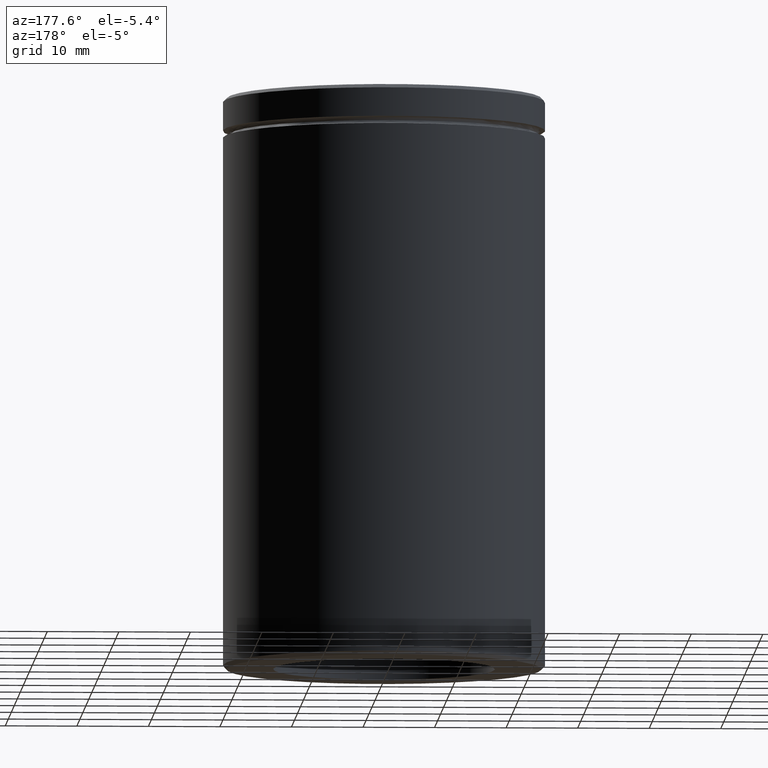
[diagram: clean part render]
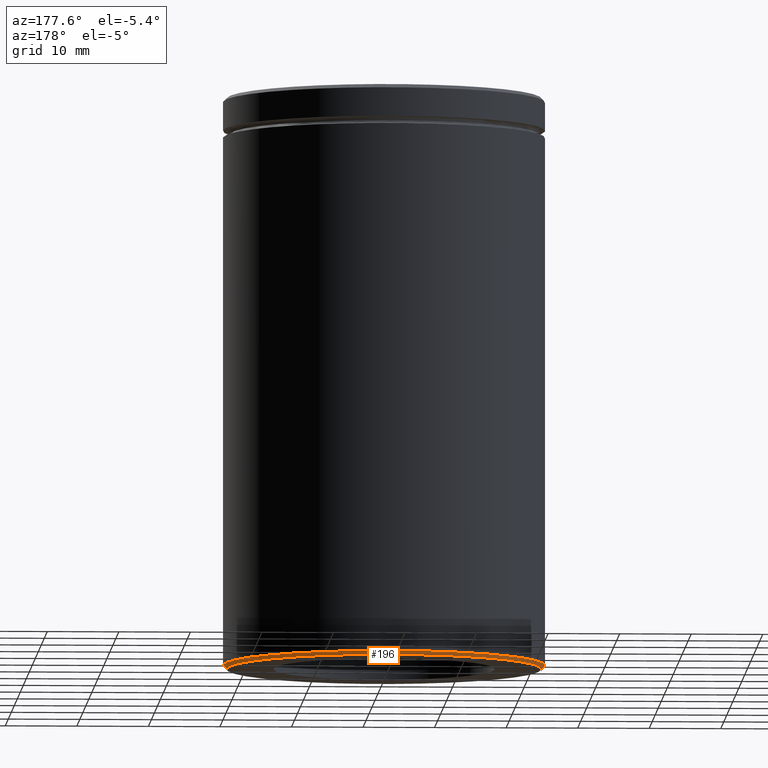
[diagram: same view with one face highlighted and labeled with its STEP entity id]
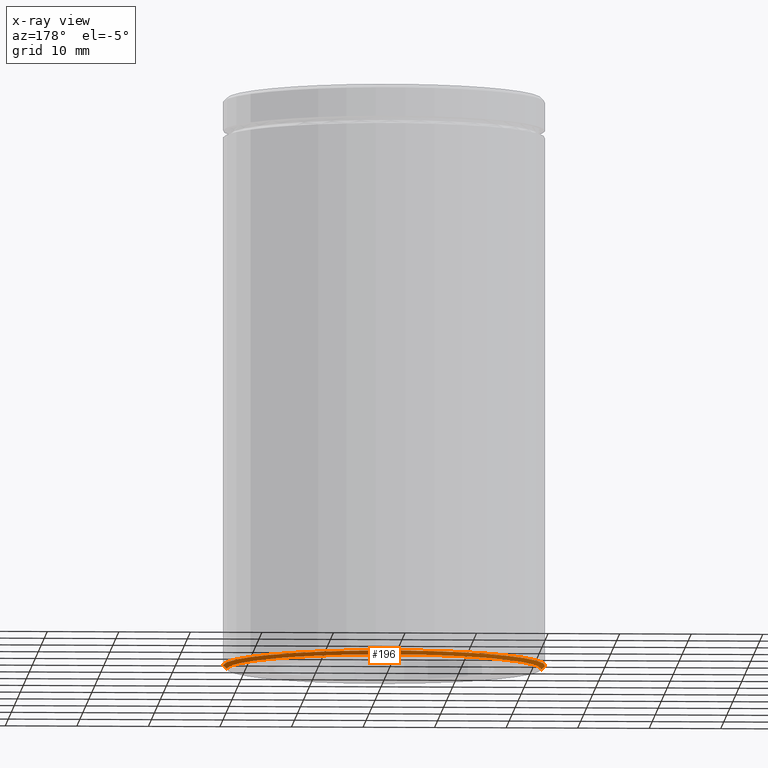
[diagram: x-ray of the same camera — body ghosted, the highlighted face saturated]
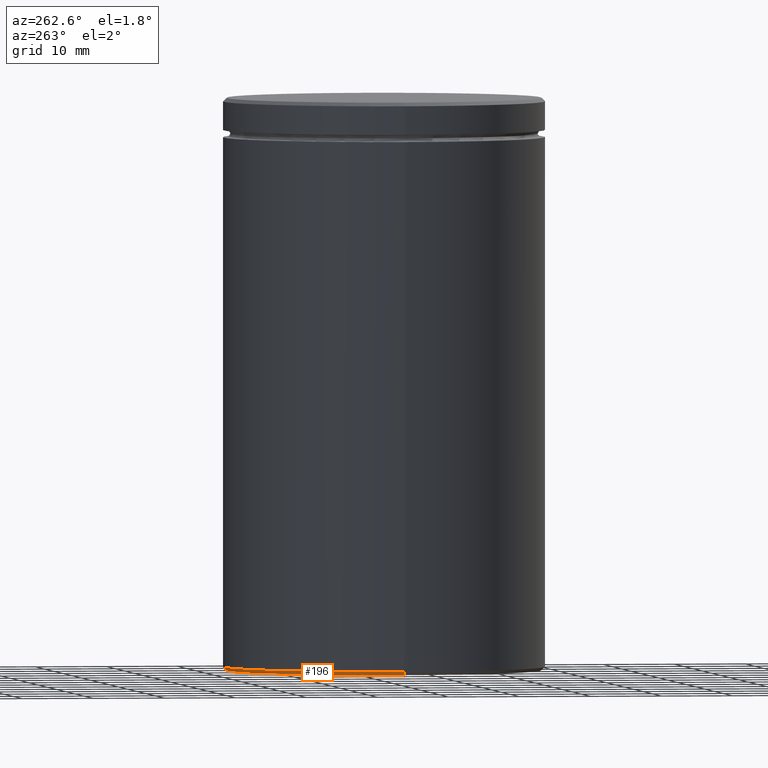
[diagram: same view with one face highlighted and labeled with its STEP entity id]
A machine part, auxiliary view. The second image highlights one B-rep face of the part: STEP entity #196.
The next image is the same camera in x-ray: the body ghosted, the highlighted face saturated — about 0% of this face is hidden behind the body in this view.
A second angle (auxiliary view) of the same face is appended — the face is thin or edge-on in the first view.
In plain terms, the highlighted conical surface has half-angle 45 deg.
Its self-contained STEP definition (entity closure, byte-faithful):
#3 = EDGE_CURVE ( 'NONE', #138, #230, #540, .T. ) ;
#6 = CARTESIAN_POINT ( 'NONE',  ( -22.50000000000000000, 2.755455298081544778E-15, -79.49999999999998579 ) ) ;
#40 = DIRECTION ( 'NONE',  ( -1.000000000000000000, 0.000000000000000000, 0.000000000000000000 ) ) ;
#42 = CARTESIAN_POINT ( 'NONE',  ( 0.000000000000000000, 0.000000000000000000, -79.49999999999998579 ) ) ;
#46 = DIRECTION ( 'NONE',  ( -0.000000000000000000, -0.000000000000000000, 1.000000000000000000 ) ) ;
#52 = EDGE_LOOP ( 'NONE', ( #550, #263, #319, #476 ) ) ;
#57 = CONICAL_SURFACE ( 'NONE', #271, 22.50000000000000000, 0.7853981633974346233 ) ;
#72 = CARTESIAN_POINT ( 'NONE',  ( -22.00000000000000000, 2.724839128102860991E-15, -80.00000000000000000 ) ) ;
#74 = VECTOR ( 'NONE', #389, 1000.000000000000000 ) ;
#99 = DIRECTION ( 'NONE',  ( -1.000000000000000000, 0.000000000000000000, 0.000000000000000000 ) ) ;
#138 = VERTEX_POINT ( 'NONE', #72 ) ;
#149 = DIRECTION ( 'NONE',  ( 0.000000000000000000, 0.000000000000000000, -1.000000000000000000 ) ) ;
#166 = CARTESIAN_POINT ( 'NONE',  ( 22.50000000000000000, 0.000000000000000000, -79.49999999999998579 ) ) ;
#174 = LINE ( 'NONE', #357, #499 ) ;
#176 = AXIS2_PLACEMENT_3D ( 'NONE', #330, #149, #99 ) ;
#181 = DIRECTION ( 'NONE',  ( -0.000000000000000000, -0.000000000000000000, 1.000000000000000000 ) ) ;
#196 = ADVANCED_FACE ( 'NONE', ( #311 ), #57, .T. ) ;
#197 = VERTEX_POINT ( 'NONE', #6 ) ;
#221 = EDGE_CURVE ( 'NONE', #450, #197, #292, .T. ) ;
#228 = CARTESIAN_POINT ( 'NONE',  ( 0.000000000000000000, 0.000000000000000000, -79.49999999999998579 ) ) ;
#230 = VERTEX_POINT ( 'NONE', #405 ) ;
#240 = EDGE_CURVE ( 'NONE', #230, #450, #174, .T. ) ;
#263 = ORIENTED_EDGE ( 'NONE', *, *, #428, .T. ) ;
#268 = DIRECTION ( 'NONE',  ( 1.000000000000000000, 0.000000000000000000, 0.000000000000000000 ) ) ;
#271 = AXIS2_PLACEMENT_3D ( 'NONE', #42, #46, #268 ) ;
#292 = CIRCLE ( 'NONE', #541, 22.50000000000000000 ) ;
#311 = FACE_OUTER_BOUND ( 'NONE', #52, .T. ) ;
#319 = ORIENTED_EDGE ( 'NONE', *, *, #221, .F. ) ;
#330 = CARTESIAN_POINT ( 'NONE',  ( 0.000000000000000000, 0.000000000000000000, -80.00000000000000000 ) ) ;
#357 = CARTESIAN_POINT ( 'NONE',  ( 22.50000000000000000, 0.000000000000000000, -79.49999999999998579 ) ) ;
#358 = CARTESIAN_POINT ( 'NONE',  ( -22.50000000000000000, 2.755455298081544778E-15, -79.49999999999998579 ) ) ;
#389 = DIRECTION ( 'NONE',  ( -0.7071067811865378028, 8.659560562354814529E-17, 0.7071067811865573427 ) ) ;
#405 = CARTESIAN_POINT ( 'NONE',  ( 22.00000000000000000, 0.000000000000000000, -80.00000000000000000 ) ) ;
#428 = EDGE_CURVE ( 'NONE', #138, #197, #524, .T. ) ;
#450 = VERTEX_POINT ( 'NONE', #166 ) ;
#476 = ORIENTED_EDGE ( 'NONE', *, *, #240, .F. ) ;
#499 = VECTOR ( 'NONE', #523, 1000.000000000000000 ) ;
#523 = DIRECTION ( 'NONE',  ( 0.7071067811865378028, 0.000000000000000000, 0.7071067811865573427 ) ) ;
#524 = LINE ( 'NONE', #358, #74 ) ;
#540 = CIRCLE ( 'NONE', #176, 22.00000000000000000 ) ;
#541 = AXIS2_PLACEMENT_3D ( 'NONE', #228, #181, #40 ) ;
#550 = ORIENTED_EDGE ( 'NONE', *, *, #3, .F. ) ;